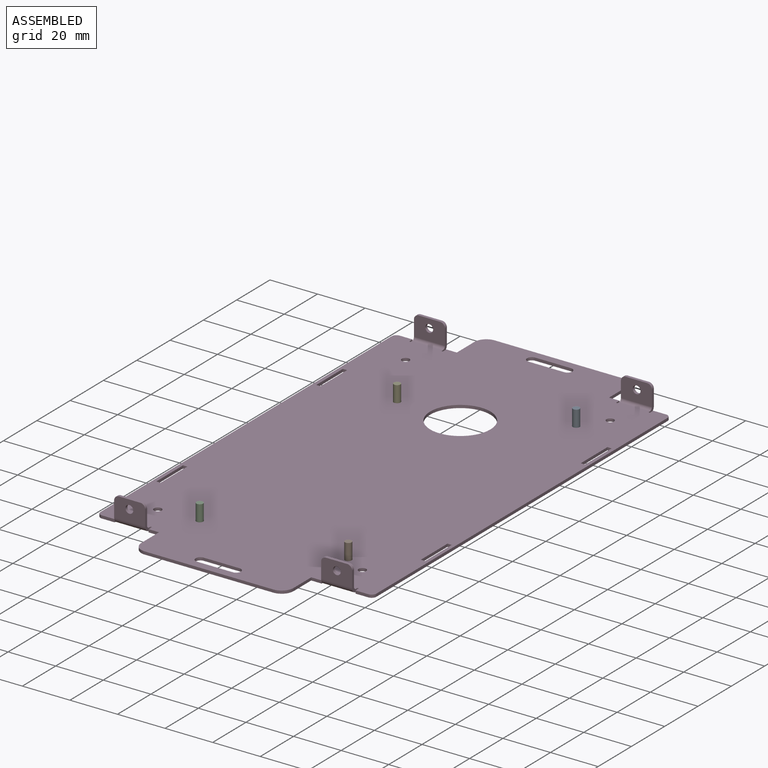
[diagram: assembled view]
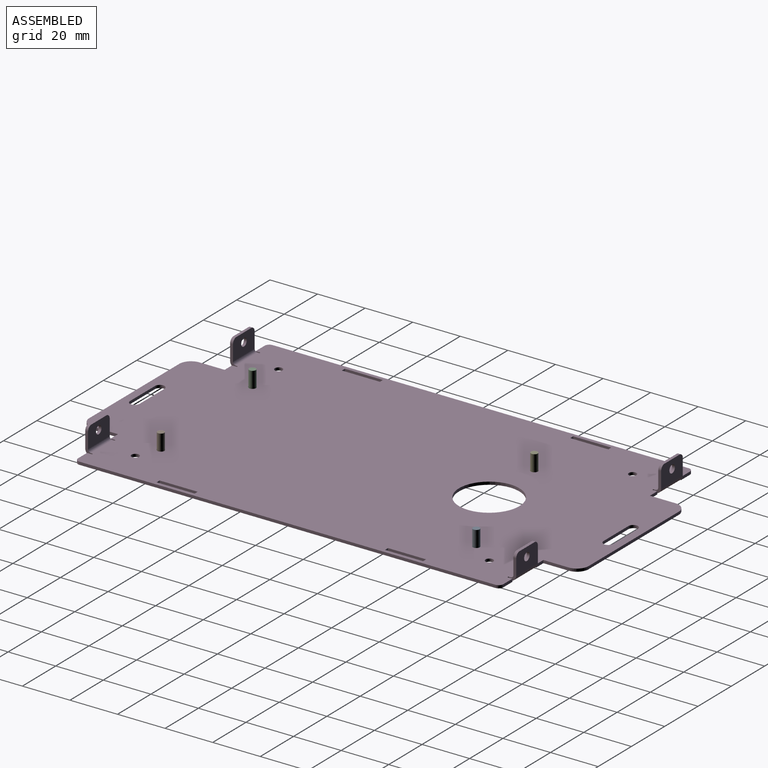
[diagram: assembled view, second angle]
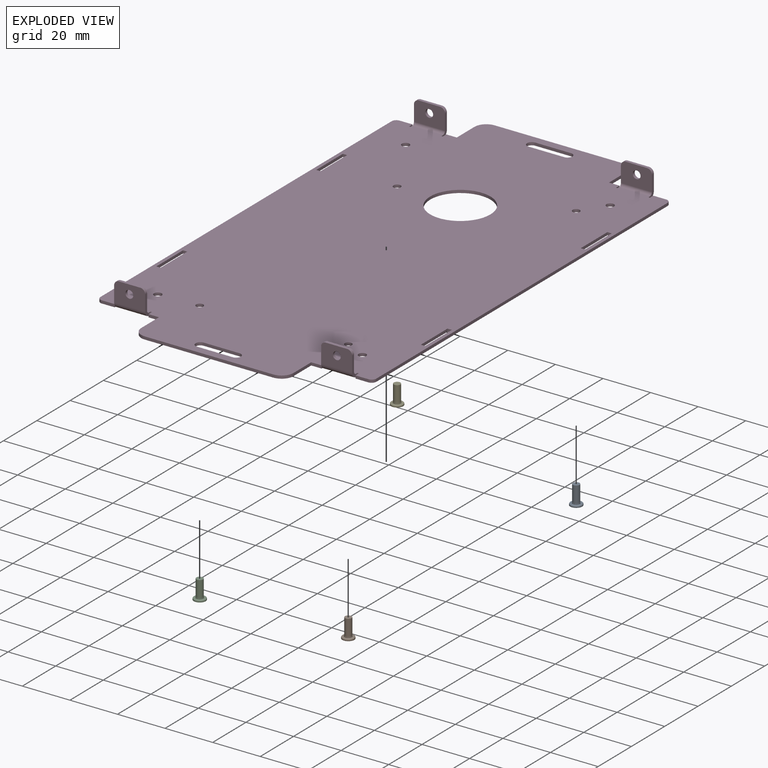
[diagram: exploded view]
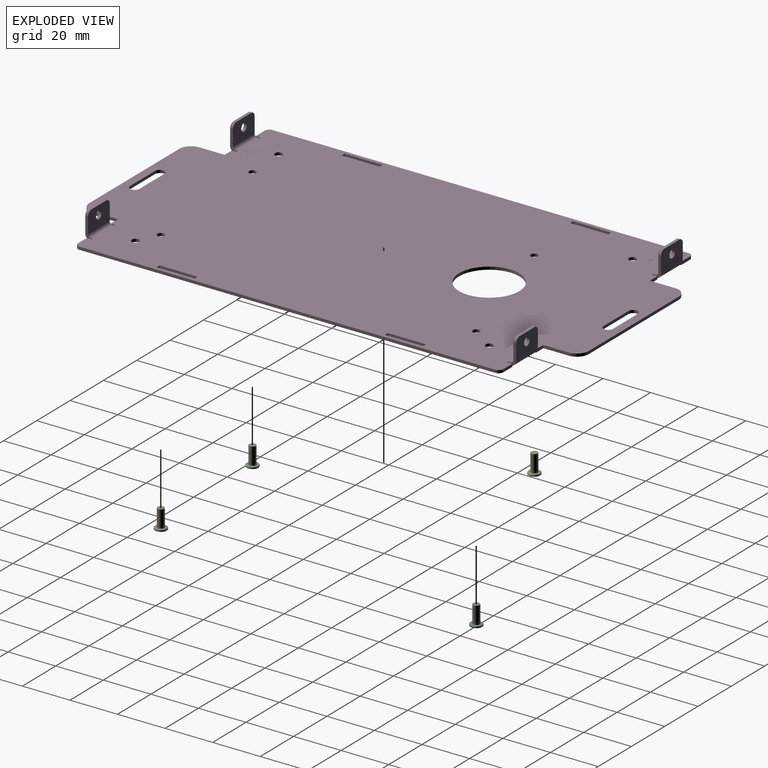
[diagram: exploded view, second angle]
ASSEMBLY  parts=5 mates=4
PART A: 8 faces, bbox 8x5.4x5.4 mm
  f0: cylinder r=1.4mm len=6.9mm, axis (-1,0,0), area 60.7mm2, adj f1,f2
  f1: plane 2.8x2.8mm, normal (1,0,0), area 6.2mm2, adj f0
  f2: plane 3x3mm, normal (1,0,0), area 0.9mm2, adj f0,f3
  f3: cylinder r=1.5mm len=3mm, axis (-1,0,0), area 3.3mm2, adj f2,f4
  f4: plane 4.25x4.25mm, normal (1,0,0), area 7.1mm2, adj f3,f5
  f5: torus R=2.12mm, axis (-1,0,0), area 8.7mm2, adj f4,f6
  f6: cylinder r=2.5mm len=5mm, axis (-1,0,0), area 5.9mm2, adj f5,f7
  f7: plane 5x5mm, normal (-1,0,0), area 19.6mm2, adj f6
PART B: same geometry as A
PART C: same geometry as A
PART D: 131 faces, bbox 116x210x11 mm
  f0: plane 4.4x1.2mm, normal (0,1,0), area 5.3mm2, adj f4,f5,f50,f61
  f1: plane 5.4x1.2mm, normal (0,-1,0), area 6.5mm2, adj f4,f5,f56,f79
  f2: plane 4.4x1.2mm, normal (0,-1,0), area 5.3mm2, adj f4,f5,f11,f73
  f3: plane 5.4x1.2mm, normal (0,1,0), area 6.5mm2, adj f4,f5,f53,f67
  f4: plane 210x116mm, normal (0,0,-1), area 21813.1mm2, adj f0,f1,f2,f3,f6,f7,f8,f9
  f5: plane 210x116mm, normal (0,0,1), area 21813.1mm2, adj f0,f1,f2,f3,f6,f7,f8,f9
  f6: plane 5.4x1.2mm, normal (0,1,0), area 6.5mm2, adj f4,f5,f58,f81
  f7: plane 174.8x1.2mm, normal (1,0,0), area 209.8mm2, adj f4,f5,f56,f58
  f8: plane 4.4x1.2mm, normal (0,-1,0), area 5.3mm2, adj f4,f5,f9,f75
  f9: plane 10.6x1.2mm, normal (1,0,0), area 12.7mm2, adj f4,f5,f8,f52
  f10: plane 54x1.2mm, normal (0,-1,0), area 64.8mm2, adj f4,f5,f52,f54
  f11: plane 10.6x1.2mm, normal (-1,0,0), area 12.7mm2, adj f2,f4,f5,f54
  f12: plane 5.4x1.2mm, normal (0,-1,0), area 6.5mm2, adj f4,f5,f51,f69
  f13: plane 174.8x1.2mm, normal (-1,0,0), area 209.8mm2, adj f4,f5,f51,f53
  f14: plane 4.4x1.2mm, normal (0,1,0), area 5.3mm2, adj f4,f5,f15,f63
  f15: plane 10.6x1.2mm, normal (-1,0,0), area 12.7mm2, adj f4,f5,f14,f57
  f16: plane 54x1.2mm, normal (0,1,0), area 64.8mm2, adj f4,f5,f55,f57
  f17: plane 16x1.2mm, normal (1,0,0), area 19.2mm2, adj f4,f5,f18,f49
  f18: plane 1.8x1.2mm, normal (0,1,0), area 2.2mm2, adj f4,f5,f17,f19
  f19: plane 16x1.2mm, normal (-1,0,0), area 19.2mm2, adj f4,f5,f18,f49
  f20: plane 16x1.2mm, normal (1,0,0), area 19.2mm2, adj f4,f5,f21,f48
  f21: plane 1.8x1.2mm, normal (0,1,0), area 2.2mm2, adj f4,f5,f20,f22
  f22: plane 16x1.2mm, normal (-1,0,0), area 19.2mm2, adj f4,f5,f21,f48
  f23: plane 1.8x1.2mm, normal (0,1,0), area 2.2mm2, adj f4,f5,f24,f47
  f24: plane 16x1.2mm, normal (-1,0,0), area 19.2mm2, adj f4,f5,f23,f25
  f25: plane 1.8x1.2mm, normal (0,-1,0), area 2.2mm2, adj f4,f5,f24,f47
  f26: plane 1.8x1.2mm, normal (0,1,0), area 2.2mm2, adj f4,f5,f27,f46
  f27: plane 16x1.2mm, normal (-1,0,0), area 19.2mm2, adj f4,f5,f26,f28
  f28: plane 1.8x1.2mm, normal (0,-1,0), area 2.2mm2, adj f4,f5,f27,f46
  f29: plane 15x1.2mm, normal (0,-1,0), area 18mm2, adj f4,f5,f30,f45
  f30: cylinder r=2mm len=4mm, axis (0,0,1), area 7.5mm2, adj f4,f5,f29,f31
  f31: plane 15x1.2mm, normal (0,1,0), area 18mm2, adj f4,f5,f30,f45
  f32: plane 15x1.2mm, normal (0,1,0), area 18mm2, adj f4,f5,f33,f44
  f33: cylinder r=2mm len=4mm, axis (0,0,1), area 7.5mm2, adj f4,f5,f32,f34
  f34: plane 15x1.2mm, normal (0,-1,0), area 18mm2, adj f4,f5,f33,f44
  f35: cylinder r=1.6mm len=3.2mm, axis (0,0,1), area 12.1mm2, adj f4,f5
  f36: cylinder r=1.6mm len=3.2mm, axis (0,0,1), area 12.1mm2, adj f4,f5
  f37: cylinder r=1.6mm len=3.2mm, axis (0,0,1), area 12.1mm2, adj f4,f5
  f38: cylinder r=1.6mm len=3.2mm, axis (0,0,1), area 12.1mm2, adj f4,f5
  f39: cylinder r=1.5mm len=3mm, axis (0,0,1), area 11.3mm2, adj f4,f5
  f40: cylinder r=1.5mm len=3mm, axis (0,0,1), area 11.3mm2, adj f4,f5
  f41: cylinder r=1.5mm len=3mm, axis (0,0,1), area 11.3mm2, adj f4,f5
  f42: cylinder r=1.5mm len=3mm, axis (0,0,1), area 11.3mm2, adj f4,f5
  f43: cylinder r=12.7mm len=25.4mm, axis (0,0,1), area 95.8mm2, adj f4,f5
  f44: cylinder r=2mm len=4mm, axis (0,0,1), area 7.5mm2, adj f4,f5,f32,f34
  f45: cylinder r=2mm len=4mm, axis (0,0,1), area 7.5mm2, adj f4,f5,f29,f31
  f46: plane 16x1.2mm, normal (1,0,0), area 19.2mm2, adj f4,f5,f26,f28
  f47: plane 16x1.2mm, normal (1,0,0), area 19.2mm2, adj f4,f5,f23,f25
  f48: plane 1.8x1.2mm, normal (0,-1,0), area 2.2mm2, adj f4,f5,f20,f22
  f49: plane 1.8x1.2mm, normal (0,-1,0), area 2.2mm2, adj f4,f5,f17,f19
  f50: plane 10.6x1.2mm, normal (1,0,0), area 12.7mm2, adj f0,f4,f5,f55
  f51: cylinder r=2mm len=2mm, axis (0,0,1), area 3.8mm2, adj f4,f5,f12,f13
  f52: cylinder r=5mm len=5mm, axis (0,0,-1), area 9.4mm2, adj f4,f5,f9,f10
  f53: cylinder r=2mm len=2mm, axis (0,0,1), area 3.8mm2, adj f3,f4,f5,f13
  f54: cylinder r=5mm len=5mm, axis (0,0,-1), area 9.4mm2, adj f4,f5,f10,f11
  f55: cylinder r=5mm len=5mm, axis (0,0,-1), area 9.4mm2, adj f4,f5,f16,f50
  f56: cylinder r=2mm len=2mm, axis (0,0,-1), area 3.8mm2, adj f1,f4,f5,f7
  f57: cylinder r=5mm len=5mm, axis (0,0,-1), area 9.4mm2, adj f4,f5,f15,f16
  f58: cylinder r=2mm len=2mm, axis (0,0,-1), area 3.8mm2, adj f4,f5,f6,f7
  f59: plane 1.2x0.6mm, normal (-1,0,0), area 0.7mm2, adj f4,f5,f60,f91
  f60: cylinder r=0.3mm len=1.2mm, axis (0,0,1), area 1.1mm2, adj f4,f5,f59,f61
  f61: plane 1.8x1.2mm, normal (1,0,0), area 2.2mm2, adj f0,f4,f5,f60
  f62: plane 1.2x0.6mm, normal (1,0,0), area 0.7mm2, adj f4,f5,f64,f104
  f63: plane 1.8x1.2mm, normal (-1,0,0), area 2.2mm2, adj f4,f5,f14,f64
  f64: cylinder r=0.3mm len=1.2mm, axis (0,0,1), area 1.1mm2, adj f4,f5,f62,f63
  f65: plane 1.2x0.6mm, normal (-1,0,0), area 0.7mm2, adj f4,f5,f66,f103
  f66: cylinder r=0.3mm len=1.2mm, axis (0,0,1), area 1.1mm2, adj f4,f5,f65,f67
  f67: plane 1.8x1.2mm, normal (1,0,0), area 2.2mm2, adj f3,f4,f5,f66
  f68: plane 1.2x0.6mm, normal (-1,0,0), area 0.7mm2, adj f4,f5,f70,f116
  f69: plane 1.8x1.2mm, normal (1,0,0), area 2.2mm2, adj f4,f5,f12,f70
  f70: cylinder r=0.3mm len=1.2mm, axis (0,0,1), area 1.1mm2, adj f4,f5,f68,f69
  f71: plane 1.2x0.6mm, normal (1,0,0), area 0.7mm2, adj f4,f5,f72,f115
  f72: cylinder r=0.3mm len=1.2mm, axis (0,0,1), area 1.1mm2, adj f4,f5,f71,f73
  f73: plane 1.8x1.2mm, normal (-1,0,0), area 2.2mm2, adj f2,f4,f5,f72
  f74: plane 1.2x0.6mm, normal (-1,0,0), area 0.7mm2, adj f4,f5,f76,f128
  f75: plane 1.8x1.2mm, normal (1,0,0), area 2.2mm2, adj f4,f5,f8,f76
  f76: cylinder r=0.3mm len=1.2mm, axis (0,0,1), area 1.1mm2, adj f4,f5,f74,f75
  f77: plane 1.2x0.6mm, normal (1,0,0), area 0.7mm2, adj f4,f5,f78,f127
  f78: cylinder r=0.3mm len=1.2mm, axis (0,0,1), area 1.1mm2, adj f4,f5,f77,f79
  f79: plane 1.8x1.2mm, normal (-1,0,0), area 2.2mm2, adj f1,f4,f5,f78
  f80: plane 1.2x0.6mm, normal (1,0,0), area 0.7mm2, adj f4,f5,f82,f92
  f81: plane 1.8x1.2mm, normal (-1,0,0), area 2.2mm2, adj f4,f5,f6,f82
  f82: cylinder r=0.3mm len=1.2mm, axis (0,0,1), area 1.1mm2, adj f4,f5,f80,f81
  f83: plane 9x1.2mm, normal (0,0,1), area 10.8mm2, adj f87,f88,f89,f90
  f84: plane 6.6x1.2mm, normal (1,0,0), area 7.9mm2, adj f87,f88,f89,f92
  f85: cylinder r=1.65mm len=3.3mm, axis (0,1,0), area 12.4mm2, adj f87,f88
  f86: plane 6.6x1.2mm, normal (-1,0,0), area 7.9mm2, adj f87,f88,f90,f91
  f87: plane 13x8.6mm, normal (0,1,0), area 101.5mm2, adj f83,f84,f85,f86,f89,f90,f93
  f88: plane 13x8.6mm, normal (0,-1,0), area 101.5mm2, adj f83,f84,f85,f86,f89,f90,f94
  f89: cylinder r=2mm len=2mm, axis (0,-1,0), area 3.8mm2, adj f83,f84,f87,f88
  f90: cylinder r=2mm len=2mm, axis (0,-1,0), area 3.8mm2, adj f83,f86,f87,f88
  f91: plane 2.4x2.4mm, normal (-1,0,0), area 3.4mm2, adj f59,f86,f93,f94
  f92: plane 2.4x2.4mm, normal (1,0,0), area 3.4mm2, adj f80,f84,f93,f94
  f93: cylinder r=2.4mm len=13mm, axis (-1,0,0), area 49mm2, adj f4,f87,f91,f92
  f94: cylinder r=1.2mm len=13mm, axis (-1,0,0), area 24.5mm2, adj f5,f88,f91,f92
  f95: plane 9x1.2mm, normal (0,0,1), area 10.8mm2, adj f99,f100,f101,f102
  f96: plane 6.6x1.2mm, normal (1,0,0), area 7.9mm2, adj f99,f100,f101,f104
  f97: cylinder r=1.65mm len=3.3mm, axis (0,1,0), area 12.4mm2, adj f99,f100
  f98: plane 6.6x1.2mm, normal (-1,0,0), area 7.9mm2, adj f99,f100,f102,f103
  f99: plane 13x8.6mm, normal (0,1,0), area 101.5mm2, adj f95,f96,f97,f98,f101,f102,f105
  f100: plane 13x8.6mm, normal (0,-1,0), area 101.5mm2, adj f95,f96,f97,f98,f101,f102,f106
  f101: cylinder r=2mm len=2mm, axis (0,-1,0), area 3.8mm2, adj f95,f96,f99,f100
  f102: cylinder r=2mm len=2mm, axis (0,-1,0), area 3.8mm2, adj f95,f98,f99,f100
  f103: plane 2.4x2.4mm, normal (-1,0,0), area 3.4mm2, adj f65,f98,f105,f106
  f104: plane 2.4x2.4mm, normal (1,0,0), area 3.4mm2, adj f62,f96,f105,f106
  f105: cylinder r=2.4mm len=13mm, axis (-1,0,0), area 49mm2, adj f4,f99,f103,f104
  f106: cylinder r=1.2mm len=13mm, axis (-1,0,0), area 24.5mm2, adj f5,f100,f103,f104
  f107: plane 9x1.2mm, normal (0,0,1), area 10.8mm2, adj f111,f112,f113,f114
  f108: plane 6.6x1.2mm, normal (-1,0,0), area 7.9mm2, adj f111,f112,f114,f116
  f109: cylinder r=1.65mm len=3.3mm, axis (0,-1,0), area 12.4mm2, adj f111,f112
  f110: plane 6.6x1.2mm, normal (1,0,0), area 7.9mm2, adj f111,f112,f113,f115
  f111: plane 13x8.6mm, normal (0,-1,0), area 101.5mm2, adj f107,f108,f109,f110,f113,f114,f117
  f112: plane 13x8.6mm, normal (0,1,0), area 101.5mm2, adj f107,f108,f109,f110,f113,f114,f118
  f113: cylinder r=2mm len=2mm, axis (0,1,0), area 3.8mm2, adj f107,f110,f111,f112
  f114: cylinder r=2mm len=2mm, axis (0,1,0), area 3.8mm2, adj f107,f108,f111,f112
  f115: plane 2.4x2.4mm, normal (1,0,0), area 3.4mm2, adj f71,f110,f117,f118
  f116: plane 2.4x2.4mm, normal (-1,0,0), area 3.4mm2, adj f68,f108,f117,f118
  f117: cylinder r=2.4mm len=13mm, axis (1,0,0), area 49mm2, adj f4,f111,f115,f116
  f118: cylinder r=1.2mm len=13mm, axis (1,0,0), area 24.5mm2, adj f5,f112,f115,f116
  f119: plane 9x1.2mm, normal (0,0,1), area 10.8mm2, adj f123,f124,f125,f126
  f120: plane 6.6x1.2mm, normal (-1,0,0), area 7.9mm2, adj f123,f124,f126,f128
  f121: cylinder r=1.65mm len=3.3mm, axis (0,-1,0), area 12.4mm2, adj f123,f124
  f122: plane 6.6x1.2mm, normal (1,0,0), area 7.9mm2, adj f123,f124,f125,f127
  f123: plane 13x8.6mm, normal (0,-1,0), area 101.5mm2, adj f119,f120,f121,f122,f125,f126,f129
  f124: plane 13x8.6mm, normal (0,1,0), area 101.5mm2, adj f119,f120,f121,f122,f125,f126,f130
  f125: cylinder r=2mm len=2mm, axis (0,1,0), area 3.8mm2, adj f119,f122,f123,f124
  f126: cylinder r=2mm len=2mm, axis (0,1,0), area 3.8mm2, adj f119,f120,f123,f124
  f127: plane 2.4x2.4mm, normal (1,0,0), area 3.4mm2, adj f77,f122,f129,f130
  f128: plane 2.4x2.4mm, normal (-1,0,0), area 3.4mm2, adj f74,f120,f129,f130
  f129: cylinder r=2.4mm len=13mm, axis (1,0,0), area 49mm2, adj f4,f123,f127,f128
  f130: cylinder r=1.2mm len=13mm, axis (1,0,0), area 24.5mm2, adj f5,f124,f127,f128
PART E: same geometry as A
PLACE A rot(axis=(0,-1,0),90deg) t=(36,64,0)mm
PLACE B rot(axis=(0,-1,0),90deg) t=(34,-70,0)mm
PLACE C rot(axis=(0,-1,0),90deg) t=(-26,-73.5,0)mm
PLACE D at identity
PLACE E rot(axis=(0,-1,0),90deg) t=(-26,45,0)mm
MATE fastened B.f0 <-> D.f42  axis (0,0,-1) through (34,-70,0)mm
MATE fastened C.f0 <-> D.f40  axis (0,0,-1) through (-26,-73.5,0)mm
MATE fastened E.f0 <-> D.f41  axis (0,0,-1) through (-26,45,0)mm
MATE fastened A.f0 <-> D.f39  axis (0,0,-1) through (36,64,0)mm
